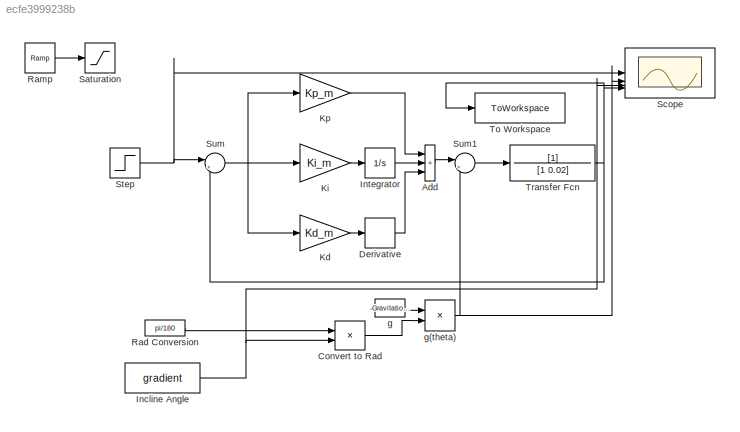
MODEL slx_ecfe3999238b
KIND model
CONFIG AbsTol = auto
CONFIG EnableMultiTasking = off
CONFIG FixedStep = auto
CONFIG MaxStep = auto
CONFIG MinStep = auto
CONFIG RelTol = 1e-3
CONFIG SampleTimeConstraint = Unconstrained
CONFIG SolverName = VariableStepAuto
CONFIG StartTime = 0.0
CONFIG StopTime = 240
WORKSPACE source: mxarray member
WORKSPACE Gradient: Simulink.Parameter (value not decoded)
WORKSPACE Gravitational_Acceleration: Simulink.Parameter (value not decoded)
WORKSPACE Kd: Simulink.Parameter (value not decoded)
WORKSPACE Ki: Simulink.Parameter (value not decoded)
WORKSPACE Kp: Simulink.Parameter (value not decoded)
WORKSPACE Set_Speed: Simulink.Parameter (value not decoded)
BLOCK [Sum] Add
  IconShape = rectangular
  Inputs = +++
BLOCK [Product] Convert to Rad
BLOCK [Derivative] Derivative
BLOCK [Constant] Incline Angle
  Value = gradient
BLOCK [Integrator] Integrator
BLOCK [Gain] Kd
  Gain = Kd_m
BLOCK [Gain] Ki
  Gain = Ki_m
BLOCK [Gain] Kp
  Gain = Kp_m
BLOCK [Constant] Rad Conversion
  Value = pi/180
BLOCK [Reference] Ramp  REF=simulink/Sources/Ramp
  SourceBlock = simulink/Sources/Ramp
  SourceType = Ramp
BLOCK [Saturate] Saturation
  LowerLimit = initial_speed
  UpperLimit = max_speed
BLOCK [Scope] Scope
  Floating = off
  NumInputPorts = 4
  ScopeSpecificationString = Simulink.scopes.TimeScopeBlockCfg('CurrentConfiguration', extmgr.ConfigurationSet(extmgr.Configuration('Core','General UI',true),extmgr.Configuration('Core','Source UI',true),extmgr.Configuration('Sources','WiredSimulink',true),extmgr.Configuration('Visuals','Time Domain',true,'SerializedDisplays',{struct('MinYLimReal','-4.43229','MaxYLimReal','39.89059','YLabelReal','','MinYLimMag','0.00000','Max...<+1403ch>
BLOCK [Step] Step
  After = max_speed
  Before = initial_speed
  SampleTime = 0
  Time = 10
BLOCK [Sum] Sum
  Inputs = |+-
BLOCK [Sum] Sum1
  Inputs = |++
BLOCK [ToWorkspace] To Workspace
  FixptAsFi = on
  MaxDataPoints = inf
  SampleTime = -1
  SaveFormat = Timeseries
  VariableName = simout
BLOCK [TransferFcn] Transfer Fcn
  Denominator = [1 0.02]
BLOCK [Constant] g
  Value = -Gravitational_Acceleration
BLOCK [Product] g(theta)
LINE Add:1 -> Sum1:1
LINE Convert to Rad:1 -> g(theta):2
LINE Derivative:1 -> Add:3
NET Incline Angle:1 -> Convert to Rad:2, Scope:3
LINE Integrator:1 -> Add:2
LINE Kd:1 -> Derivative:1
LINE Ki:1 -> Integrator:1
LINE Kp:1 -> Add:1
LINE Rad Conversion:1 -> Convert to Rad:1
LINE Ramp:1 -> Saturation:1
NET Step:1 -> Scope:1, Sum:1
LINE Sum1:1 -> Transfer Fcn:1
NET Sum:1 -> Kd:1, Ki:1, Kp:1
NET Transfer Fcn:1 -> Scope:4, Sum:2, To Workspace:1
NET g(theta):1 -> Scope:2, Sum1:2
LINE g:1 -> g(theta):1
note: NET lines group one-source signal fan-out (src -> all destinations, sorted); 1:1 wires keep LINE
